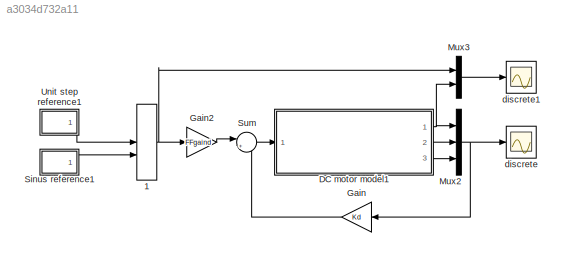
MODEL slx_a3034d732a11
KIND model
CONFIG AbsTol = auto
CONFIG FixedStep = 0.001
CONFIG MaxStep = auto
CONFIG MinStep = auto
CONFIG RelTol = 1e-3
CONFIG SampleTimeConstraint = Unconstrained
CONFIG Solver = VariableStepAuto
CONFIG SolverMode = Auto
CONFIG SolverName = VariableStepAuto
CONFIG StartTime = 0.0
CONFIG StopTime = 10.0
BLOCK [ManualSwitch]    1
BLOCK [ModelReference] DC motor model1
  CopyOfModelName = DC_motor_d.slx
  ModelNameDialog = DC_motor_d.slx
  ModelReferenceVersion = 1.8
  Ports = [1, 3]
  Variant = off
BLOCK [Gain] Gain
  Gain = Kd
  Multiplication = Matrix(K*u)
  OutDataTypeStr = Inherit: Inherit via internal rule
  ParamDataTypeStr = Inherit: Inherit via internal rule
  SaturateOnIntegerOverflow = off
BLOCK [Gain] Gain2
  Gain = FFgaind
  Multiplication = Matrix(K*u)
  OutDataTypeStr = Inherit: Inherit via internal rule
  ParamDataTypeStr = Inherit: Inherit via internal rule
  SaturateOnIntegerOverflow = off
BLOCK [Mux] Mux2
  DisplayOption = bar
  Inputs = 3
  Ports = [3, 1]
BLOCK [Mux] Mux3
  DisplayOption = bar
  Inputs = 2
  Ports = [2, 1]
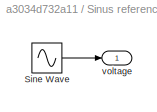
BLOCK [SubSystem] Sinus reference1
  Ports = [0, 1]
  RequestExecContextInheritance = off
  Variant = off
BLOCK [Sin] Sinus reference1/Sine Wave
  Ports = [0, 1]
  SampleTime = 0
BLOCK [Outport] Sinus reference1/voltage
  IconDisplay = Port number
BLOCK [Sum] Sum
  IconShape = round
  InputSameDT = off
  Inputs = |+-
  OutDataTypeStr = Inherit: Inherit via internal rule
  Ports = [2, 1]
  SaturateOnIntegerOverflow = off
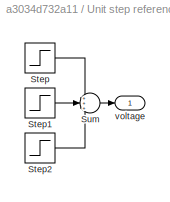
BLOCK [SubSystem] Unit step reference1
  Ports = [0, 1]
  RequestExecContextInheritance = off
  Variant = off
BLOCK [Step] Unit step reference1/Step
  SampleTime = timestep
  Time = 0
BLOCK [Step] Unit step reference1/Step1
  After = -2
  SampleTime = timestep
  Time = 4
BLOCK [Step] Unit step reference1/Step2
  SampleTime = timestep
  Time = 8
BLOCK [Sum] Unit step reference1/Sum
  IconShape = round
  InputSameDT = off
  Inputs = +++
  OutDataTypeStr = Inherit: Inherit via internal rule
  Ports = [3, 1]
  SaturateOnIntegerOverflow = off
BLOCK [Outport] Unit step reference1/voltage
  IconDisplay = Port number
  PortDimensions = 1
BLOCK [Scope] discrete
  Ports = [1]
  ScopeSpecificationString = Simulink.scopes.TimeScopeBlockCfg('CurrentConfiguration', extmgr.ConfigurationSet(extmgr.Configuration('Core','General UI',true),extmgr.Configuration('Core','Source UI',true),extmgr.Configuration('Sources','WiredSimulink',true,'DataLoggingLimitDataPoints',true,'DataLoggingSaveFormat','Array','DataLoggingDecimation','1','DataLoggingDecimateData',true,'DataLoggingVariableName','ScopeData2'),extmgr.C...<+1596ch>
BLOCK [Scope] discrete1
  Ports = [1]
  ScopeSpecificationString = Simulink.scopes.TimeScopeBlockCfg('CurrentConfiguration', extmgr.ConfigurationSet(extmgr.Configuration('Core','General UI',true),extmgr.Configuration('Core','Source UI',true),extmgr.Configuration('Sources','WiredSimulink',true,'DataLoggingLimitDataPoints',true,'DataLoggingSaveFormat','Array','DataLoggingDecimation','1','DataLoggingDecimateData',true,'DataLoggingVariableName','ScopeData1'),extmgr.C...<+1512ch>
NET    1:1 -> Gain2:1, Mux3:1
NET DC motor model1:1 -> Mux2:1, Mux3:2
LINE DC motor model1:2 -> Mux2:2
LINE DC motor model1:3 -> Mux2:3
LINE Gain2:1 -> Sum:1
LINE Gain:1 -> Sum:2
NET Mux2:1 -> Gain:1, discrete:1
LINE Mux3:1 -> discrete1:1
LINE Sinus reference1/Sine Wave:1 -> Sinus reference1/voltage:1
LINE Sinus reference1:1 ->    1:2
LINE Sum:1 -> DC motor model1:1
LINE Unit step reference1/Step1:1 -> Unit step reference1/Sum:2
LINE Unit step reference1/Step2:1 -> Unit step reference1/Sum:3
LINE Unit step reference1/Step:1 -> Unit step reference1/Sum:1
LINE Unit step reference1/Sum:1 -> Unit step reference1/voltage:1
LINE Unit step reference1:1 ->    1:1
note: NET lines group one-source signal fan-out (src -> all destinations, sorted); 1:1 wires keep LINE
